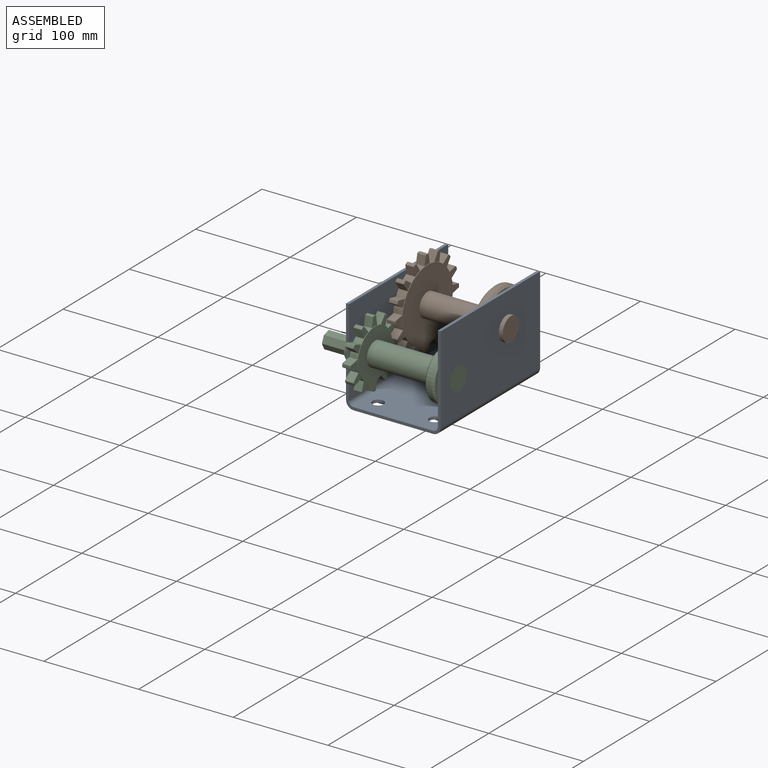
[diagram: assembled view]
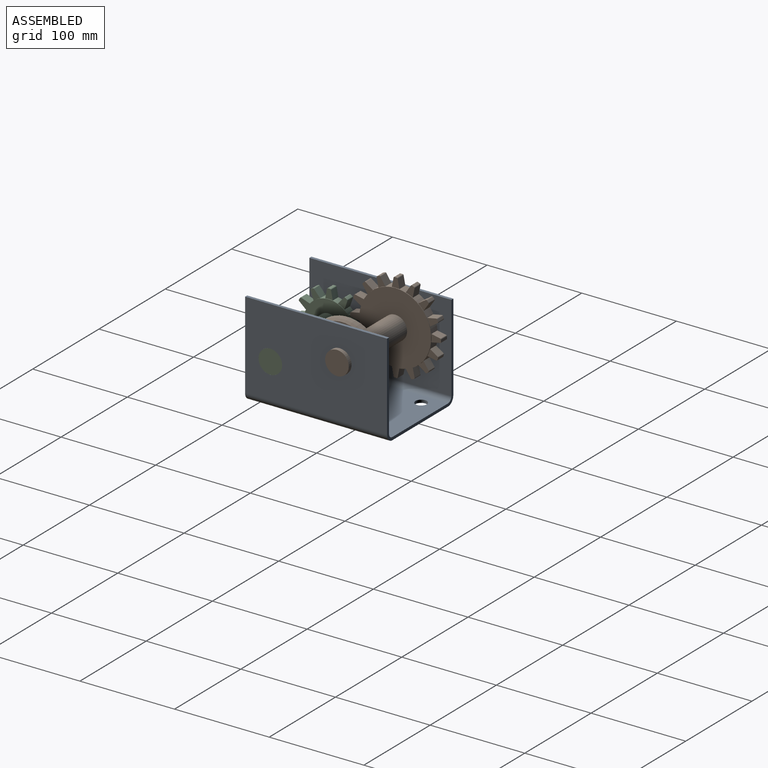
[diagram: assembled view, second angle]
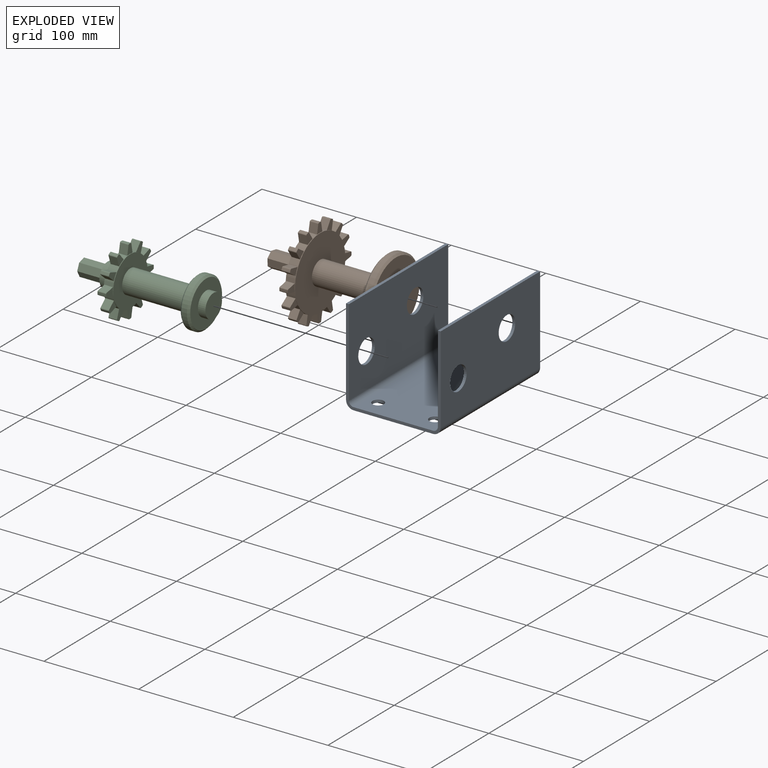
[diagram: exploded view]
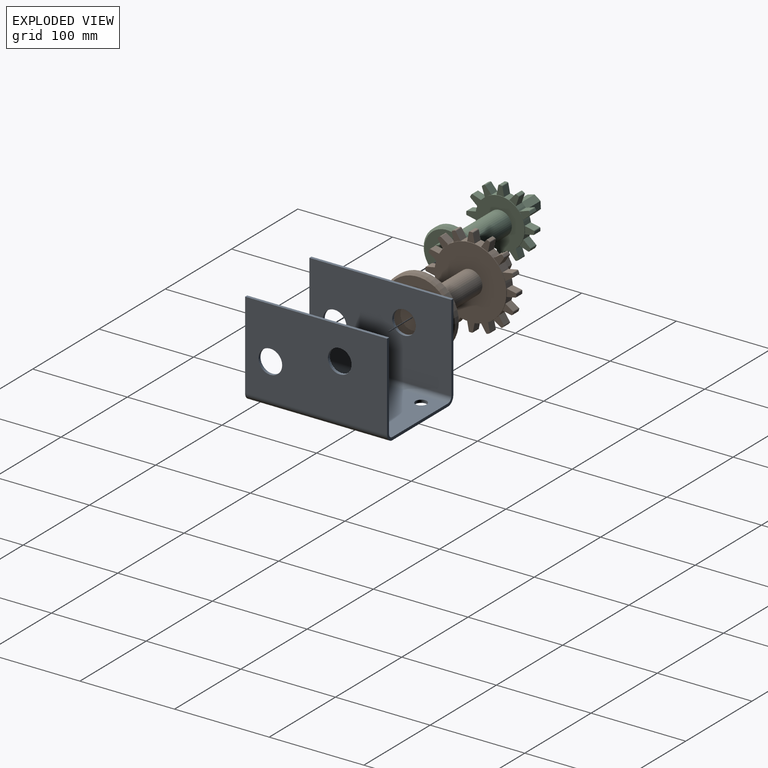
[diagram: exploded view, second angle]
ASSEMBLY  parts=3 mates=3
PART A: 22 faces, bbox 100x150x100 mm
  f0: cylinder r=5mm len=150mm, axis (0,1,0), area 1178.1mm2, adj f1,f11,f12,f13
  f1: plane 150x84mm, normal (0,0,1), area 12147.6mm2, adj f0,f2,f12,f13,f18,f19,f20,f21
  f2: cylinder r=5mm len=150mm, axis (0,1,0), area 1178.1mm2, adj f1,f3,f12,f13
  f3: plane 150x92mm, normal (1,0,0), area 12818.3mm2, adj f2,f4,f12,f13,f16,f17
  f4: plane 150x3mm, normal (0,0,1), area 450mm2, adj f3,f5,f12,f13
  f5: plane 150x92mm, normal (-1,0,0), area 12818.3mm2, adj f4,f6,f12,f13,f16,f17
  f6: cylinder r=8mm len=150mm, axis (0,1,0), area 1885mm2, adj f5,f7,f12,f13
  f7: plane 150x84mm, normal (0,0,-1), area 12147.6mm2, adj f6,f8,f12,f13,f18,f19,f20,f21
  f8: cylinder r=8mm len=150mm, axis (0,1,0), area 1885mm2, adj f7,f9,f12,f13
  f9: plane 150x92mm, normal (1,0,0), area 12818.3mm2, adj f8,f10,f12,f13,f14,f15
  f10: plane 150x3mm, normal (0,0,1), area 450mm2, adj f9,f11,f12,f13
  f11: plane 150x92mm, normal (-1,0,0), area 12818.3mm2, adj f0,f10,f12,f13,f14,f15
  f12: plane 100x100mm, normal (0,-1,0), area 865.3mm2, adj f0,f1,f2,f3,f4,f5,f6,f7
  f13: plane 100x100mm, normal (0,1,0), area 865.3mm2, adj f0,f1,f2,f3,f4,f5,f6,f7
  f14: cylinder r=12.5mm len=25mm, axis (1,0,0), area 235.6mm2, adj f9,f11
  f15: cylinder r=12.5mm len=25mm, axis (1,0,0), area 235.6mm2, adj f9,f11
  f16: cylinder r=12.5mm len=25mm, axis (1,0,0), area 235.6mm2, adj f3,f5
  f17: cylinder r=12.5mm len=25mm, axis (1,0,0), area 235.6mm2, adj f3,f5
  f18: cylinder r=6mm len=12mm, axis (0,0,-1), area 113.1mm2, adj f1,f7
  f19: cylinder r=6mm len=12mm, axis (0,0,-1), area 113.1mm2, adj f1,f7
  f20: cylinder r=6mm len=12mm, axis (0,0,-1), area 113.1mm2, adj f1,f7
  f21: cylinder r=6mm len=12mm, axis (0,0,-1), area 113.1mm2, adj f1,f7
PART B: 133 faces, bbox 96x138x96 mm
  f0: cylinder r=38mm len=76mm, axis (0,1,0), area 1233.5mm2, adj f1,f2,f3,f4,f6,f7,f31,f32
  f1: plane 76x76mm, normal (0,-1,0), area 4045.6mm2, adj f0,f27
  f2: plane 76x76mm, normal (0,1,0), area 4045.6mm2, adj f0,f10
  f3: plane 9.39x9mm, normal (-0.98,0,0.19), area 86.1mm2, adj f0,f6,f7,f9
  f4: plane 9.39x9mm, normal (0.98,0,0.19), area 86.1mm2, adj f0,f6,f7,f8
  f5: cylinder r=48mm len=9mm, axis (0,1,0), area 21.6mm2, adj f6,f7,f8,f9
  f6: plane 10.21x8mm, normal (0,-1,0), area 59.8mm2, adj f0,f3,f4,f5,f8,f9
  f7: plane 10.21x8mm, normal (0,1,0), area 59.8mm2, adj f0,f3,f4,f5,f8,f9
  f8: cylinder r=1mm len=9mm, axis (0,1,0), area 12.2mm2, adj f4,f5,f6,f7
  f9: cylinder r=1mm len=9mm, axis (0,1,0), area 12.2mm2, adj f3,f5,f6,f7
  f10: cylinder r=12.5mm len=70mm, axis (0,-1,0), area 5497.8mm2, adj f2,f15
  f11: cylinder r=12.5mm len=25mm, axis (0,-1,0), area 628.3mm2, adj f12,f14
  f12: plane 25x25mm, normal (0,1,0), area 490.9mm2, adj f11
  f13: cylinder r=38mm len=76mm, axis (0,-1,0), area 1432.6mm2, adj f16,f17
  f14: plane 72x72mm, normal (0,1,0), area 3580.6mm2, adj f11,f17
  f15: plane 72x72mm, normal (0,-1,0), area 3580.6mm2, adj f10,f16
  f16: cone r=38mm half-angle=45deg, axis (0,1,0), area 657.5mm2, adj f13,f15
  f17: cone r=36mm half-angle=45deg, axis (0,-1,0), area 657.5mm2, adj f13,f14
  f18: plane 17.29x17.04mm, normal (0,-1,0), area 215.7mm2, adj f19,f20,f21,f22,f23,f24,f25
  f19: plane 26x5.79mm, normal (-0.75,0,0.66), area 200.3mm2, adj f18,f20,f25,f26
  f20: plane 26x7.58mm, normal (-0.98,0,-0.18), area 200.3mm2, adj f18,f19,f21,f26
  f21: plane 26x6.78mm, normal (-0.48,0,-0.88), area 200.3mm2, adj f18,f20,f22,f26
  f22: plane 26x7.09mm, normal (0.39,0,-0.92), area 200.3mm2, adj f18,f21,f23,f26
  f23: plane 26x7.42mm, normal (0.96,0,-0.27), area 200.3mm2, adj f18,f22,f24,f26
  f24: plane 26x6.24mm, normal (0.81,0,0.59), area 200.3mm2, adj f18,f23,f25,f26
  f25: plane 26x7.7mm, normal (0.05,0,1), area 200.3mm2, adj f18,f19,f24,f26
  f26: plane 25x25mm, normal (0,-1,0), area 275.1mm2, adj f19,f20,f21,f22,f23,f24,f25,f27
  f27: cylinder r=12.5mm len=25mm, axis (0,1,0), area 1099.6mm2, adj f1,f26
  f28: cylinder r=1mm len=9mm, axis (0,1,0), area 12.2mm2, adj f30,f31,f32,f34
  f29: cylinder r=1mm len=9mm, axis (0,1,0), area 12.2mm2, adj f30,f31,f32,f33
  f30: cylinder r=48mm len=9mm, axis (0,1,0), area 21.6mm2, adj f28,f29,f31,f32
  f31: plane 11.48x9.3mm, normal (0,-1,0), area 59.8mm2, adj f0,f28,f29,f30,f33,f34
  f32: plane 11.48x9.3mm, normal (0,1,0), area 59.8mm2, adj f0,f28,f29,f30,f33,f34
  f33: plane 9.38x9mm, normal (0.2,0,0.98), area 86.1mm2, adj f0,f29,f31,f32
  f34: plane 9x7.97mm, normal (-0.55,0,-0.83), area 86.1mm2, adj f0,f28,f31,f32
  f35: cylinder r=1mm len=9mm, axis (0,1,0), area 12.2mm2, adj f36,f38,f39,f41
  f36: cylinder r=48mm len=9mm, axis (0,1,0), area 21.6mm2, adj f35,f37,f38,f39
  f37: cylinder r=1mm len=9mm, axis (0,1,0), area 12.2mm2, adj f36,f38,f39,f40
  f38: plane 11.16x11.16mm, normal (0,-1,0), area 59.8mm2, adj f0,f35,f36,f37,f40,f41
  f39: plane 11.16x11.16mm, normal (0,1,0), area 59.8mm2, adj f0,f35,f36,f37,f40,f41
  f40: plane 9x7.95mm, normal (-0.83,0,0.56), area 86.1mm2, adj f0,f37,f38,f39
  f41: plane 9x7.95mm, normal (0.56,0,-0.83), area 86.1mm2, adj f0,f35,f38,f39
  f42: cylinder r=1mm len=9mm, axis (0,1,0), area 12.2mm2, adj f43,f45,f46,f48
  f43: cylinder r=48mm len=9mm, axis (0,1,0), area 21.6mm2, adj f42,f44,f45,f46
  f44: cylinder r=1mm len=9mm, axis (0,1,0), area 12.2mm2, adj f43,f45,f46,f47
  f45: plane 11.48x9.3mm, normal (0,-1,0), area 59.8mm2, adj f0,f42,f43,f44,f47,f48
  f46: plane 11.48x9.3mm, normal (0,1,0), area 59.8mm2, adj f0,f42,f43,f44,f47,f48
  f47: plane 9.38x9mm, normal (-0.98,0,0.2), area 86.1mm2, adj f0,f44,f45,f46
  f48: plane 9x7.97mm, normal (0.83,0,-0.55), area 86.1mm2, adj f0,f42,f45,f46
  f49: cylinder r=1mm len=9mm, axis (0,1,0), area 12.2mm2, adj f50,f52,f53,f55
  f50: cylinder r=48mm len=9mm, axis (0,1,0), area 21.6mm2, adj f49,f51,f52,f53
  f51: cylinder r=1mm len=9mm, axis (0,1,0), area 12.2mm2, adj f50,f52,f53,f54
  f52: plane 11.48x9.3mm, normal (0,-1,0), area 59.8mm2, adj f0,f49,f50,f51,f54,f55
  f53: plane 11.48x9.3mm, normal (0,1,0), area 59.8mm2, adj f0,f49,f50,f51,f54,f55
  f54: plane 9x7.97mm, normal (-0.83,0,-0.55), area 86.1mm2, adj f0,f51,f52,f53
  f55: plane 9.38x9mm, normal (0.98,0,0.2), area 86.1mm2, adj f0,f49,f52,f53
  f56: cylinder r=1mm len=9mm, axis (0,1,0), area 12.2mm2, adj f57,f59,f60,f62
  f57: cylinder r=48mm len=9mm, axis (0,1,0), area 21.6mm2, adj f56,f58,f59,f60
  f58: cylinder r=1mm len=9mm, axis (0,1,0), area 12.2mm2, adj f57,f59,f60,f61
  f59: plane 10.21x8mm, normal (0,-1,0), area 59.8mm2, adj f0,f56,f57,f58,f61,f62
  f60: plane 10.21x8mm, normal (0,1,0), area 59.8mm2, adj f0,f56,f57,f58,f61,f62
  f61: plane 9.39x9mm, normal (0.19,0,-0.98), area 86.1mm2, adj f0,f58,f59,f60
  f62: plane 9.39x9mm, normal (0.19,0,0.98), area 86.1mm2, adj f0,f56,f59,f60
  f63: cylinder r=1mm len=9mm, axis (0,1,0), area 12.2mm2, adj f64,f66,f67,f69
  f64: cylinder r=48mm len=9mm, axis (0,1,0), area 21.6mm2, adj f63,f65,f66,f67
  f65: cylinder r=1mm len=9mm, axis (0,1,0), area 12.2mm2, adj f64,f66,f67,f68
  f66: plane 11.16x11.16mm, normal (0,-1,0), area 59.8mm2, adj f0,f63,f64,f65,f68,f69
  f67: plane 11.16x11.16mm, normal (0,1,0), area 59.8mm2, adj f0,f63,f64,f65,f68,f69
  f68: plane 9x7.95mm, normal (0.83,0,-0.56), area 86.1mm2, adj f0,f65,f66,f67
  f69: plane 9x7.95mm, normal (-0.56,0,0.83), area 86.1mm2, adj f0,f63,f66,f67
  f70: cylinder r=1mm len=9mm, axis (0,1,0), area 12.2mm2, adj f71,f73,f74,f76
  f71: cylinder r=48mm len=9mm, axis (0,1,0), area 21.6mm2, adj f70,f72,f73,f74
  f72: cylinder r=1mm len=9mm, axis (0,1,0), area 12.2mm2, adj f71,f73,f74,f75
  f73: plane 10.21x8mm, normal (0,-1,0), area 59.8mm2, adj f0,f70,f71,f72,f75,f76
  f74: plane 10.21x8mm, normal (0,1,0), area 59.8mm2, adj f0,f70,f71,f72,f75,f76
  f75: plane 9.39x9mm, normal (-0.98,0,-0.19), area 86.1mm2, adj f0,f72,f73,f74
  f76: plane 9.39x9mm, normal (0.98,0,-0.19), area 86.1mm2, adj f0,f70,f73,f74
  f77: cylinder r=48mm len=9mm, axis (0,1,0), area 21.6mm2, adj f78,f79,f82,f83
  f78: cylinder r=1mm len=9mm, axis (0,1,0), area 12.2mm2, adj f77,f81,f82,f83
  f79: cylinder r=1mm len=9mm, axis (0,1,0), area 12.2mm2, adj f77,f80,f82,f83
  f80: plane 9x7.97mm, normal (-0.83,0,0.55), area 86.1mm2, adj f0,f79,f82,f83
  f81: plane 9.38x9mm, normal (0.98,0,-0.2), area 86.1mm2, adj f0,f78,f82,f83
  f82: plane 11.48x9.3mm, normal (0,1,0), area 59.8mm2, adj f0,f77,f78,f79,f80,f81
  f83: plane 11.48x9.3mm, normal (0,-1,0), area 59.8mm2, adj f0,f77,f78,f79,f80,f81
  f84: cylinder r=48mm len=9mm, axis (0,1,0), area 21.6mm2, adj f85,f86,f89,f90
  f85: cylinder r=1mm len=9mm, axis (0,1,0), area 12.2mm2, adj f84,f88,f89,f90
  f86: cylinder r=1mm len=9mm, axis (0,1,0), area 12.2mm2, adj f84,f87,f89,f90
  f87: plane 9x7.95mm, normal (0.83,0,0.56), area 86.1mm2, adj f0,f86,f89,f90
  f88: plane 9x7.95mm, normal (-0.56,0,-0.83), area 86.1mm2, adj f0,f85,f89,f90
  f89: plane 11.16x11.16mm, normal (0,1,0), area 59.8mm2, adj f0,f84,f85,f86,f87,f88
  f90: plane 11.16x11.16mm, normal (0,-1,0), area 59.8mm2, adj f0,f84,f85,f86,f87,f88
  f91: cylinder r=48mm len=9mm, axis (0,1,0), area 21.6mm2, adj f92,f93,f96,f97
  f92: cylinder r=1mm len=9mm, axis (0,1,0), area 12.2mm2, adj f91,f95,f96,f97
  f93: cylinder r=1mm len=9mm, axis (0,1,0), area 12.2mm2, adj f91,f94,f96,f97
  f94: plane 9x7.97mm, normal (0.55,0,0.83), area 86.1mm2, adj f0,f93,f96,f97
  f95: plane 9.38x9mm, normal (-0.2,0,-0.98), area 86.1mm2, adj f0,f92,f96,f97
  f96: plane 11.48x9.3mm, normal (0,1,0), area 59.8mm2, adj f0,f91,f92,f93,f94,f95
  f97: plane 11.48x9.3mm, normal (0,-1,0), area 59.8mm2, adj f0,f91,f92,f93,f94,f95
  f98: cylinder r=48mm len=9mm, axis (0,1,0), area 21.6mm2, adj f99,f100,f103,f104
  f99: cylinder r=1mm len=9mm, axis (0,1,0), area 12.2mm2, adj f98,f102,f103,f104
  f100: cylinder r=1mm len=9mm, axis (0,1,0), area 12.2mm2, adj f98,f101,f103,f104
  f101: plane 9x7.95mm, normal (-0.83,0,-0.56), area 86.1mm2, adj f0,f100,f103,f104
  f102: plane 9x7.95mm, normal (0.56,0,0.83), area 86.1mm2, adj f0,f99,f103,f104
  f103: plane 11.16x11.16mm, normal (0,1,0), area 59.8mm2, adj f0,f98,f99,f100,f101,f102
  f104: plane 11.16x11.16mm, normal (0,-1,0), area 59.8mm2, adj f0,f98,f99,f100,f101,f102
  f105: cylinder r=48mm len=9mm, axis (0,1,0), area 21.6mm2, adj f106,f107,f110,f111
  f106: cylinder r=1mm len=9mm, axis (0,1,0), area 12.2mm2, adj f105,f109,f110,f111
  f107: cylinder r=1mm len=9mm, axis (0,1,0), area 12.2mm2, adj f105,f108,f110,f111
  f108: plane 9.39x9mm, normal (-0.19,0,-0.98), area 86.1mm2, adj f0,f107,f110,f111
  f109: plane 9.39x9mm, normal (-0.19,0,0.98), area 86.1mm2, adj f0,f106,f110,f111
  f110: plane 10.21x8mm, normal (0,1,0), area 59.8mm2, adj f0,f105,f106,f107,f108,f109
  f111: plane 10.21x8mm, normal (0,-1,0), area 59.8mm2, adj f0,f105,f106,f107,f108,f109
  f112: cylinder r=48mm len=9mm, axis (0,1,0), area 21.6mm2, adj f113,f114,f117,f118
  f113: cylinder r=1mm len=9mm, axis (0,1,0), area 12.2mm2, adj f112,f116,f117,f118
  f114: cylinder r=1mm len=9mm, axis (0,1,0), area 12.2mm2, adj f112,f115,f117,f118
  f115: plane 9.38x9mm, normal (-0.98,0,-0.2), area 86.1mm2, adj f0,f114,f117,f118
  f116: plane 9x7.97mm, normal (0.83,0,0.55), area 86.1mm2, adj f0,f113,f117,f118
  f117: plane 11.48x9.3mm, normal (0,1,0), area 59.8mm2, adj f0,f112,f113,f114,f115,f116
  f118: plane 11.48x9.3mm, normal (0,-1,0), area 59.8mm2, adj f0,f112,f113,f114,f115,f116
  f119: cylinder r=48mm len=9mm, axis (0,1,0), area 21.6mm2, adj f120,f121,f124,f125
  f120: cylinder r=1mm len=9mm, axis (0,1,0), area 12.2mm2, adj f119,f123,f124,f125
  f121: cylinder r=1mm len=9mm, axis (0,1,0), area 12.2mm2, adj f119,f122,f124,f125
  f122: plane 9.38x9mm, normal (0.2,0,-0.98), area 86.1mm2, adj f0,f121,f124,f125
  f123: plane 9x7.97mm, normal (-0.55,0,0.83), area 86.1mm2, adj f0,f120,f124,f125
  f124: plane 11.48x9.3mm, normal (0,1,0), area 59.8mm2, adj f0,f119,f120,f121,f122,f123
  f125: plane 11.48x9.3mm, normal (0,-1,0), area 59.8mm2, adj f0,f119,f120,f121,f122,f123
  f126: plane 9.38x9mm, normal (-0.2,0,0.98), area 86.1mm2, adj f0,f129,f130,f132
  f127: plane 9x7.97mm, normal (0.55,0,-0.83), area 86.1mm2, adj f0,f129,f130,f131
  f128: cylinder r=48mm len=9mm, axis (0,1,0), area 21.6mm2, adj f129,f130,f131,f132
  f129: plane 11.48x9.3mm, normal (0,-1,0), area 59.8mm2, adj f0,f126,f127,f128,f131,f132
  f130: plane 11.48x9.3mm, normal (0,1,0), area 59.8mm2, adj f0,f126,f127,f128,f131,f132
  f131: cylinder r=1mm len=9mm, axis (0,1,0), area 12.2mm2, adj f127,f128,f129,f130
  f132: cylinder r=1mm len=9mm, axis (0,1,0), area 12.2mm2, adj f126,f128,f129,f130
PART C: 105 faces, bbox 72x138x72 mm
  f0: cylinder r=26mm len=52mm, axis (0,1,0), area 766.2mm2, adj f1,f2,f3,f4,f6,f7,f31,f32
  f1: plane 52x52mm, normal (0,-1,0), area 1632.8mm2, adj f0,f27
  f2: plane 52x52mm, normal (0,1,0), area 1632.8mm2, adj f0,f17
  f3: plane 9x7.29mm, normal (-0.75,0,0.66), area 86.9mm2, adj f0,f6,f7,f9
  f4: plane 9.14x9mm, normal (0.95,0,-0.32), area 86.9mm2, adj f0,f6,f7,f8
  f5: cylinder r=36mm len=9mm, axis (0,1,0), area 21.7mm2, adj f6,f7,f8,f9
  f6: plane 11.63x10.12mm, normal (0,-1,0), area 59.8mm2, adj f0,f3,f4,f5,f8,f9
  f7: plane 11.63x10.12mm, normal (0,1,0), area 59.8mm2, adj f0,f3,f4,f5,f8,f9
  f8: cylinder r=1mm len=9mm, axis (0,1,0), area 12.1mm2, adj f4,f5,f6,f7
  f9: cylinder r=1mm len=9mm, axis (0,1,0), area 12.1mm2, adj f3,f5,f6,f7
  f10: cone r=24mm half-angle=45deg, axis (0,-1,0), area 444.3mm2, adj f13,f14
  f11: cone r=26mm half-angle=45deg, axis (0,1,0), area 444.3mm2, adj f12,f14
  f12: plane 48x48mm, normal (0,-1,0), area 1318.7mm2, adj f11,f17
  f13: plane 48x48mm, normal (0,1,0), area 1318.7mm2, adj f10,f16
  f14: cylinder r=26mm len=52mm, axis (0,-1,0), area 980.2mm2, adj f10,f11
  f15: plane 25x25mm, normal (0,1,0), area 490.9mm2, adj f16
  f16: cylinder r=12.5mm len=25mm, axis (0,-1,0), area 628.3mm2, adj f13,f15
  f17: cylinder r=12.5mm len=70mm, axis (0,-1,0), area 5497.8mm2, adj f2,f12
  f18: plane 17.29x17.04mm, normal (0,-1,0), area 215.7mm2, adj f19,f20,f21,f22,f23,f24,f25
  f19: plane 26x5.79mm, normal (-0.75,0,0.66), area 200.3mm2, adj f18,f20,f25,f26
  f20: plane 26x7.58mm, normal (-0.98,0,-0.18), area 200.3mm2, adj f18,f19,f21,f26
  f21: plane 26x6.78mm, normal (-0.48,0,-0.88), area 200.3mm2, adj f18,f20,f22,f26
  f22: plane 26x7.09mm, normal (0.39,0,-0.92), area 200.3mm2, adj f18,f21,f23,f26
  f23: plane 26x7.42mm, normal (0.96,0,-0.27), area 200.3mm2, adj f18,f22,f24,f26
  f24: plane 26x6.24mm, normal (0.81,0,0.59), area 200.3mm2, adj f18,f23,f25,f26
  f25: plane 26x7.7mm, normal (0.05,0,1), area 200.3mm2, adj f18,f19,f24,f26
  f26: plane 25x25mm, normal (0,-1,0), area 275.1mm2, adj f19,f20,f21,f22,f23,f24,f25,f27
  f27: cylinder r=12.5mm len=25mm, axis (0,1,0), area 1099.6mm2, adj f1,f26
  f28: cylinder r=1mm len=9mm, axis (0,1,0), area 12.1mm2, adj f30,f31,f32,f34
  f29: cylinder r=1mm len=9mm, axis (0,1,0), area 12.1mm2, adj f30,f31,f32,f33
  f30: cylinder r=36mm len=9mm, axis (0,1,0), area 21.7mm2, adj f28,f29,f31,f32
  f31: plane 11.63x10.12mm, normal (0,-1,0), area 59.8mm2, adj f0,f28,f29,f30,f33,f34
  f32: plane 11.63x10.12mm, normal (0,1,0), area 59.8mm2, adj f0,f28,f29,f30,f33,f34
  f33: plane 9x7.29mm, normal (-0.75,0,-0.66), area 86.9mm2, adj f0,f29,f31,f32
  f34: plane 9.14x9mm, normal (0.95,0,0.32), area 86.9mm2, adj f0,f28,f31,f32
  f35: cylinder r=1mm len=9mm, axis (0,1,0), area 12.1mm2, adj f36,f38,f39,f41
  f36: cylinder r=36mm len=9mm, axis (0,1,0), area 21.7mm2, adj f35,f37,f38,f39
  f37: cylinder r=1mm len=9mm, axis (0,1,0), area 12.1mm2, adj f36,f38,f39,f40
  f38: plane 10.31x8mm, normal (0,-1,0), area 59.8mm2, adj f0,f35,f36,f37,f40,f41
  f39: plane 10.31x8mm, normal (0,1,0), area 59.8mm2, adj f0,f35,f36,f37,f40,f41
  f40: plane 9.48x9mm, normal (-0.19,0,0.98), area 86.9mm2, adj f0,f37,f38,f39
  f41: plane 9.48x9mm, normal (-0.19,0,-0.98), area 86.9mm2, adj f0,f35,f38,f39
  f42: cylinder r=1mm len=9mm, axis (0,1,0), area 12.1mm2, adj f43,f45,f46,f48
  f43: cylinder r=36mm len=9mm, axis (0,1,0), area 21.7mm2, adj f42,f44,f45,f46
  f44: cylinder r=1mm len=9mm, axis (0,1,0), area 12.1mm2, adj f43,f45,f46,f47
  f45: plane 11.63x10.12mm, normal (0,-1,0), area 59.8mm2, adj f0,f42,f43,f44,f47,f48
  f46: plane 11.63x10.12mm, normal (0,1,0), area 59.8mm2, adj f0,f42,f43,f44,f47,f48
  f47: plane 9x7.29mm, normal (0.66,0,-0.75), area 86.9mm2, adj f0,f44,f45,f46
  f48: plane 9.14x9mm, normal (-0.32,0,0.95), area 86.9mm2, adj f0,f42,f45,f46
  f49: cylinder r=1mm len=9mm, axis (0,1,0), area 12.1mm2, adj f50,f52,f53,f55
  f50: cylinder r=36mm len=9mm, axis (0,1,0), area 21.7mm2, adj f49,f51,f52,f53
  f51: cylinder r=1mm len=9mm, axis (0,1,0), area 12.1mm2, adj f50,f52,f53,f54
  f52: plane 11.63x10.12mm, normal (0,-1,0), area 59.8mm2, adj f0,f49,f50,f51,f54,f55
  f53: plane 11.63x10.12mm, normal (0,1,0), area 59.8mm2, adj f0,f49,f50,f51,f54,f55
  f54: plane 9x7.29mm, normal (0.75,0,0.66), area 86.9mm2, adj f0,f51,f52,f53
  f55: plane 9.14x9mm, normal (-0.95,0,-0.32), area 86.9mm2, adj f0,f49,f52,f53
  f56: cylinder r=1mm len=9mm, axis (0,1,0), area 12.1mm2, adj f57,f59,f60,f62
  f57: cylinder r=36mm len=9mm, axis (0,1,0), area 21.7mm2, adj f56,f58,f59,f60
  f58: cylinder r=1mm len=9mm, axis (0,1,0), area 12.1mm2, adj f57,f59,f60,f61
  f59: plane 10.31x8mm, normal (0,-1,0), area 59.8mm2, adj f0,f56,f57,f58,f61,f62
  f60: plane 10.31x8mm, normal (0,1,0), area 59.8mm2, adj f0,f56,f57,f58,f61,f62
  f61: plane 9.48x9mm, normal (0.19,0,-0.98), area 86.9mm2, adj f0,f58,f59,f60
  f62: plane 9.48x9mm, normal (0.19,0,0.98), area 86.9mm2, adj f0,f56,f59,f60
  f63: cylinder r=36mm len=9mm, axis (0,1,0), area 21.7mm2, adj f64,f65,f68,f69
  f64: cylinder r=1mm len=9mm, axis (0,1,0), area 12.1mm2, adj f63,f67,f68,f69
  f65: cylinder r=1mm len=9mm, axis (0,1,0), area 12.1mm2, adj f63,f66,f68,f69
  f66: plane 9.14x9mm, normal (0.32,0,-0.95), area 86.9mm2, adj f0,f65,f68,f69
  f67: plane 9x7.29mm, normal (-0.66,0,0.75), area 86.9mm2, adj f0,f64,f68,f69
  f68: plane 11.63x10.12mm, normal (0,1,0), area 59.8mm2, adj f0,f63,f64,f65,f66,f67
  f69: plane 11.63x10.12mm, normal (0,-1,0), area 59.8mm2, adj f0,f63,f64,f65,f66,f67
  f70: cylinder r=36mm len=9mm, axis (0,1,0), area 21.7mm2, adj f71,f72,f75,f76
  f71: cylinder r=1mm len=9mm, axis (0,1,0), area 12.1mm2, adj f70,f74,f75,f76
  f72: cylinder r=1mm len=9mm, axis (0,1,0), area 12.1mm2, adj f70,f73,f75,f76
  f73: plane 9x7.29mm, normal (0.75,0,-0.66), area 86.9mm2, adj f0,f72,f75,f76
  f74: plane 9.14x9mm, normal (-0.95,0,0.32), area 86.9mm2, adj f0,f71,f75,f76
  f75: plane 11.63x10.12mm, normal (0,1,0), area 59.8mm2, adj f0,f70,f71,f72,f73,f74
  f76: plane 11.63x10.12mm, normal (0,-1,0), area 59.8mm2, adj f0,f70,f71,f72,f73,f74
  f77: cylinder r=36mm len=9mm, axis (0,1,0), area 21.7mm2, adj f78,f79,f82,f83
  f78: cylinder r=1mm len=9mm, axis (0,1,0), area 12.1mm2, adj f77,f81,f82,f83
  f79: cylinder r=1mm len=9mm, axis (0,1,0), area 12.1mm2, adj f77,f80,f82,f83
  f80: plane 9x7.29mm, normal (-0.66,0,-0.75), area 86.9mm2, adj f0,f79,f82,f83
  f81: plane 9.14x9mm, normal (0.32,0,0.95), area 86.9mm2, adj f0,f78,f82,f83
  f82: plane 11.63x10.12mm, normal (0,1,0), area 59.8mm2, adj f0,f77,f78,f79,f80,f81
  f83: plane 11.63x10.12mm, normal (0,-1,0), area 59.8mm2, adj f0,f77,f78,f79,f80,f81
  f84: cylinder r=36mm len=9mm, axis (0,1,0), area 21.7mm2, adj f85,f86,f89,f90
  f85: cylinder r=1mm len=9mm, axis (0,1,0), area 12.1mm2, adj f84,f88,f89,f90
  f86: cylinder r=1mm len=9mm, axis (0,1,0), area 12.1mm2, adj f84,f87,f89,f90
  f87: plane 9x7.29mm, normal (0.66,0,0.75), area 86.9mm2, adj f0,f86,f89,f90
  f88: plane 9.14x9mm, normal (-0.32,0,-0.95), area 86.9mm2, adj f0,f85,f89,f90
  f89: plane 11.63x10.12mm, normal (0,1,0), area 59.8mm2, adj f0,f84,f85,f86,f87,f88
  f90: plane 11.63x10.12mm, normal (0,-1,0), area 59.8mm2, adj f0,f84,f85,f86,f87,f88
  f91: cylinder r=36mm len=9mm, axis (0,1,0), area 21.7mm2, adj f92,f93,f96,f97
  f92: cylinder r=1mm len=9mm, axis (0,1,0), area 12.1mm2, adj f91,f95,f96,f97
  f93: cylinder r=1mm len=9mm, axis (0,1,0), area 12.1mm2, adj f91,f94,f96,f97
  f94: plane 9.48x9mm, normal (-0.98,0,0.19), area 86.9mm2, adj f0,f93,f96,f97
  f95: plane 9.48x9mm, normal (0.98,0,0.19), area 86.9mm2, adj f0,f92,f96,f97
  f96: plane 10.31x8mm, normal (0,1,0), area 59.8mm2, adj f0,f91,f92,f93,f94,f95
  f97: plane 10.31x8mm, normal (0,-1,0), area 59.8mm2, adj f0,f91,f92,f93,f94,f95
  f98: plane 9.48x9mm, normal (0.98,0,-0.19), area 86.9mm2, adj f0,f101,f102,f104
  f99: plane 9.48x9mm, normal (-0.98,0,-0.19), area 86.9mm2, adj f0,f101,f102,f103
  f100: cylinder r=36mm len=9mm, axis (0,1,0), area 21.7mm2, adj f101,f102,f103,f104
  f101: plane 10.31x8mm, normal (0,-1,0), area 59.8mm2, adj f0,f98,f99,f100,f103,f104
  f102: plane 10.31x8mm, normal (0,1,0), area 59.8mm2, adj f0,f98,f99,f100,f103,f104
  f103: cylinder r=1mm len=9mm, axis (0,1,0), area 12.1mm2, adj f99,f100,f101,f102
  f104: cylinder r=1mm len=9mm, axis (0,1,0), area 12.1mm2, adj f98,f100,f101,f102
PLACE A t=(-301.93,-177.44,-75.39)mm
PLACE B rot(axis=(0.58,0.58,-0.58),120deg) t=(-307.99,-152.44,-10.39)mm
PLACE C rot(axis=(-0.58,-0.58,-0.58),120deg) t=(-312.19,-225.76,-30.39)mm
MATE slider B.f10 <-> A.f14  axis (1,0,0) through (-219.99,-152.44,-10.39)mm
MATE slider C.f16 <-> A.f15  axis (1,0,0) through (-224.19,-225.76,-30.39)mm
MATE slider C.f16 <-> A.f15  axis (1,0,0) through (-322.19,-225.76,-30.39)mm
